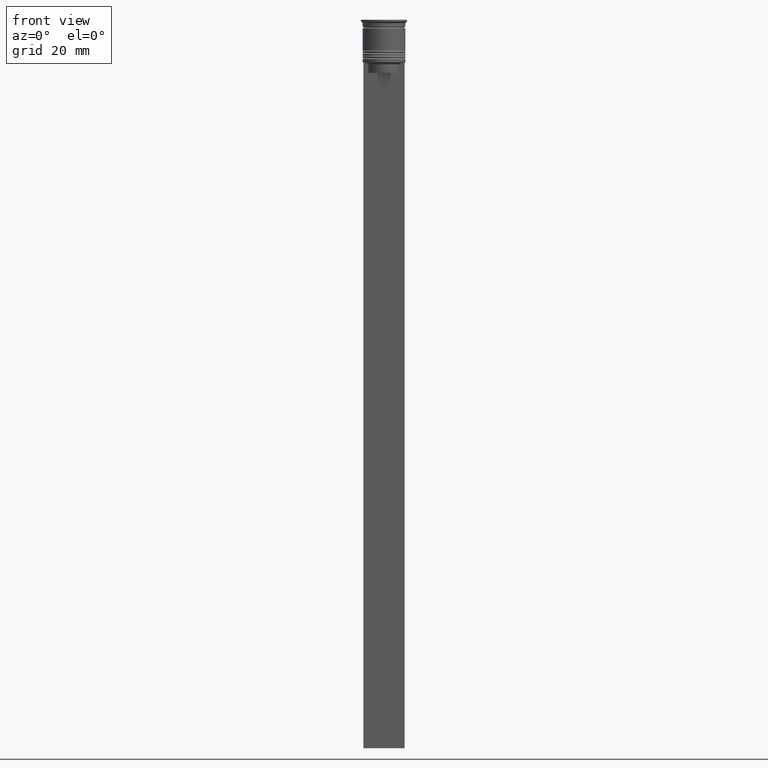
[diagram: clean part render]
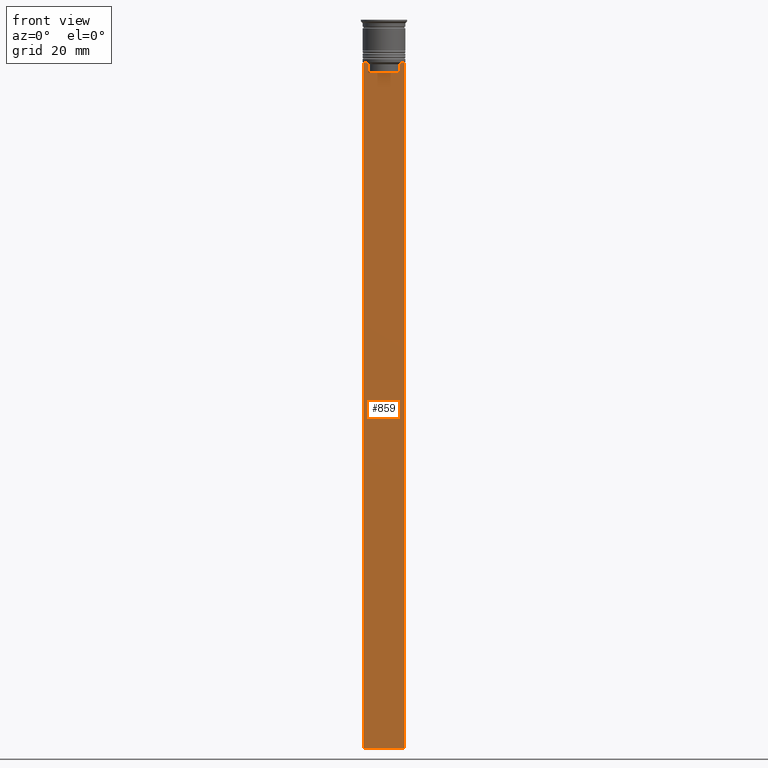
[diagram: same view with one face highlighted and labeled with its STEP entity id]
A machine part, front view. The second image highlights one B-rep face of the part: STEP entity #859.
In plain terms, the highlighted planar face has unit normal (0, -1, -0).
Its self-contained STEP definition (entity closure, byte-faithful):
#37 = LINE ( 'NONE', #2010, #1550 ) ;
#44 = DIRECTION ( 'NONE',  ( 0.000000000000000000, -1.000000000000000000, -0.000000000000000000 ) ) ;
#48 = CARTESIAN_POINT ( 'NONE',  ( 0.000000000000000000, -0.5000000000000022204, -15.50000000000000000 ) ) ;
#56 = VERTEX_POINT ( 'NONE', #2293 ) ;
#57 = CARTESIAN_POINT ( 'NONE',  ( 4.623040125285526436, -0.5000000000000017764, 0.000000000000000000 ) ) ;
#164 = ORIENTED_EDGE ( 'NONE', *, *, #921, .F. ) ;
#167 = CARTESIAN_POINT ( 'NONE',  ( -4.623040125285526436, -0.5000000000000017764, 0.000000000000000000 ) ) ;
#174 = CARTESIAN_POINT ( 'NONE',  ( -5.999999999999983125, -0.5000000000000017764, -12.50000000000000000 ) ) ;
#197 = EDGE_CURVE ( 'NONE', #1391, #1634, #2221, .T. ) ;
#223 = PLANE ( 'NONE',  #2246 ) ;
#224 = CARTESIAN_POINT ( 'NONE',  ( 4.790630799407577634, -0.5000000000000017764, -12.83338098686238915 ) ) ;
#234 = CARTESIAN_POINT ( 'NONE',  ( 4.623040125285526436, -0.5000000000000017764, -13.00000000000000178 ) ) ;
#267 = CARTESIAN_POINT ( 'NONE',  ( -4.958169823806760412, -0.5000000000000017764, -12.66670956677067927 ) ) ;
#304 = EDGE_CURVE ( 'NONE', #455, #1391, #1171, .T. ) ;
#311 = DIRECTION ( 'NONE',  ( 1.000000000000000000, 0.000000000000000000, 0.000000000000000000 ) ) ;
#381 = EDGE_CURVE ( 'NONE', #384, #56, #651, .T. ) ;
#384 = VERTEX_POINT ( 'NONE', #828 ) ;
#449 = CARTESIAN_POINT ( 'NONE',  ( 6.000000000000016875, -0.5000000000000017764, -12.50000000000000000 ) ) ;
#455 = VERTEX_POINT ( 'NONE', #2154 ) ;
#462 = EDGE_CURVE ( 'NONE', #2316, #1755, #1263, .T. ) ;
#476 = ORIENTED_EDGE ( 'NONE', *, *, #197, .F. ) ;
#487 = VERTEX_POINT ( 'NONE', #174 ) ;
#519 = ORIENTED_EDGE ( 'NONE', *, *, #304, .F. ) ;
#540 = ORIENTED_EDGE ( 'NONE', *, *, #1017, .F. ) ;
#548 = DIRECTION ( 'NONE',  ( 0.000000000000000000, 0.000000000000000000, -1.000000000000000000 ) ) ;
#560 = LINE ( 'NONE', #1497, #818 ) ;
#565 = ORIENTED_EDGE ( 'NONE', *, *, #381, .F. ) ;
#616 = DIRECTION ( 'NONE',  ( 1.000000000000000000, 0.000000000000000000, 0.000000000000000000 ) ) ;
#651 = B_SPLINE_CURVE_WITH_KNOTS ( 'NONE', 3,
 ( #816, #267, #865, #1717 ),
 .UNSPECIFIED., .F., .F.,
 ( 4, 4 ),
 ( 0.008759809102772709091, 0.009468778395565353653 ),
 .UNSPECIFIED. ) ;
#674 = CARTESIAN_POINT ( 'NONE',  ( 6.000000000000016875, -0.5000000000000017764, -12.50000000000000000 ) ) ;
#690 = ORIENTED_EDGE ( 'NONE', *, *, #2130, .F. ) ;
#704 = CARTESIAN_POINT ( 'NONE',  ( 6.000000000000016875, -0.5000000000000017764, -212.5000000000000284 ) ) ;
#769 = DIRECTION ( 'NONE',  ( 1.000000000000000000, 0.000000000000000000, 0.000000000000000000 ) ) ;
#801 = CARTESIAN_POINT ( 'NONE',  ( 5.125670687822231564, -0.5000000000000017764, -12.50000000000000000 ) ) ;
#816 = CARTESIAN_POINT ( 'NONE',  ( -5.125670687822231564, -0.5000000000000017764, -12.50000000000000000 ) ) ;
#818 = VECTOR ( 'NONE', #548, 1000.000000000000000 ) ;
#827 = CARTESIAN_POINT ( 'NONE',  ( 4.623040125285526436, -0.5000000000000022204, -15.50000000000000000 ) ) ;
#828 = CARTESIAN_POINT ( 'NONE',  ( -5.125670687822231564, -0.5000000000000017764, -12.50000000000000000 ) ) ;
#859 = ADVANCED_FACE ( 'NONE', ( #912 ), #223, .T. ) ;
#865 = CARTESIAN_POINT ( 'NONE',  ( -4.790630915080664742, -0.5000000000000017764, -12.83338087185995491 ) ) ;
#875 = DIRECTION ( 'NONE',  ( -1.000000000000000000, 0.000000000000000000, 0.000000000000000000 ) ) ;
#912 = FACE_OUTER_BOUND ( 'NONE', #1086, .T. ) ;
#915 = CARTESIAN_POINT ( 'NONE',  ( 6.000000000000016875, -0.5000000000000017764, -12.50000000000000000 ) ) ;
#918 = VECTOR ( 'NONE', #1704, 1000.000000000000000 ) ;
#921 = EDGE_CURVE ( 'NONE', #1591, #2316, #560, .T. ) ;
#945 = CARTESIAN_POINT ( 'NONE',  ( 6.000000000000016875, -0.5000000000000017764, -0.4584054212077061097 ) ) ;
#957 = CARTESIAN_POINT ( 'NONE',  ( 4.958169719475987947, -0.5000000000000017764, -12.66670967060858111 ) ) ;
#1017 = EDGE_CURVE ( 'NONE', #1820, #1591, #2079, .T. ) ;
#1055 = LINE ( 'NONE', #674, #1552 ) ;
#1077 = CARTESIAN_POINT ( 'NONE',  ( 6.000000000000016875, -0.5000000000000017764, -212.5000000000000284 ) ) ;
#1086 = EDGE_LOOP ( 'NONE', ( #565, #690, #1809, #2310, #164, #540, #1675, #476, #519, #1769 ) ) ;
#1132 = DIRECTION ( 'NONE',  ( 0.000000000000000000, 0.000000000000000000, -1.000000000000000000 ) ) ;
#1134 = CARTESIAN_POINT ( 'NONE',  ( 4.623040125285526436, -0.5000000000000017764, -13.00000000000000178 ) ) ;
#1135 = VECTOR ( 'NONE', #1616, 1000.000000000000000 ) ;
#1167 = CARTESIAN_POINT ( 'NONE',  ( -5.999999999999983125, -0.5000000000000017764, -212.5000000000000284 ) ) ;
#1171 = LINE ( 'NONE', #48, #1332 ) ;
#1263 = LINE ( 'NONE', #1077, #2179 ) ;
#1332 = VECTOR ( 'NONE', #769, 1000.000000000000000 ) ;
#1388 = VECTOR ( 'NONE', #616, 1000.000000000000000 ) ;
#1391 = VERTEX_POINT ( 'NONE', #827 ) ;
#1438 = LINE ( 'NONE', #167, #1135 ) ;
#1497 = CARTESIAN_POINT ( 'NONE',  ( 6.000000000000016875, -0.5000000000000017764, -0.4584054212077061097 ) ) ;
#1550 = VECTOR ( 'NONE', #2196, 1000.000000000000000 ) ;
#1552 = VECTOR ( 'NONE', #311, 1000.000000000000000 ) ;
#1582 = EDGE_CURVE ( 'NONE', #487, #1755, #37, .T. ) ;
#1584 = EDGE_CURVE ( 'NONE', #1634, #1820, #2085, .T. ) ;
#1591 = VERTEX_POINT ( 'NONE', #915 ) ;
#1616 = DIRECTION ( 'NONE',  ( 0.000000000000000000, 0.000000000000000000, -1.000000000000000000 ) ) ;
#1634 = VERTEX_POINT ( 'NONE', #1134 ) ;
#1675 = ORIENTED_EDGE ( 'NONE', *, *, #1584, .F. ) ;
#1704 = DIRECTION ( 'NONE',  ( -0.000000000000000000, -0.000000000000000000, 1.000000000000000000 ) ) ;
#1717 = CARTESIAN_POINT ( 'NONE',  ( -4.623040125285526436, -0.5000000000000017764, -13.00000000000000178 ) ) ;
#1755 = VERTEX_POINT ( 'NONE', #1167 ) ;
#1769 = ORIENTED_EDGE ( 'NONE', *, *, #1938, .F. ) ;
#1809 = ORIENTED_EDGE ( 'NONE', *, *, #1582, .T. ) ;
#1820 = VERTEX_POINT ( 'NONE', #801 ) ;
#1830 = CARTESIAN_POINT ( 'NONE',  ( 5.125670687822231564, -0.5000000000000017764, -12.50000000000000000 ) ) ;
#1938 = EDGE_CURVE ( 'NONE', #56, #455, #1438, .T. ) ;
#2010 = CARTESIAN_POINT ( 'NONE',  ( -5.999999999999983125, -0.5000000000000017764, -0.4584054212077061097 ) ) ;
#2079 = LINE ( 'NONE', #449, #1388 ) ;
#2085 = B_SPLINE_CURVE_WITH_KNOTS ( 'NONE', 3,
 ( #234, #224, #957, #1830 ),
 .UNSPECIFIED., .F., .F.,
 ( 4, 4 ),
 ( 0.02203698174624552780, 0.02275222543365896383 ),
 .UNSPECIFIED. ) ;
#2130 = EDGE_CURVE ( 'NONE', #487, #384, #1055, .T. ) ;
#2154 = CARTESIAN_POINT ( 'NONE',  ( -4.623040125285526436, -0.5000000000000022204, -15.50000000000000000 ) ) ;
#2179 = VECTOR ( 'NONE', #875, 1000.000000000000000 ) ;
#2196 = DIRECTION ( 'NONE',  ( 0.000000000000000000, 0.000000000000000000, -1.000000000000000000 ) ) ;
#2221 = LINE ( 'NONE', #57, #918 ) ;
#2246 = AXIS2_PLACEMENT_3D ( 'NONE', #945, #44, #1132 ) ;
#2293 = CARTESIAN_POINT ( 'NONE',  ( -4.623040125285526436, -0.5000000000000017764, -13.00000000000000178 ) ) ;
#2310 = ORIENTED_EDGE ( 'NONE', *, *, #462, .F. ) ;
#2316 = VERTEX_POINT ( 'NONE', #704 ) ;